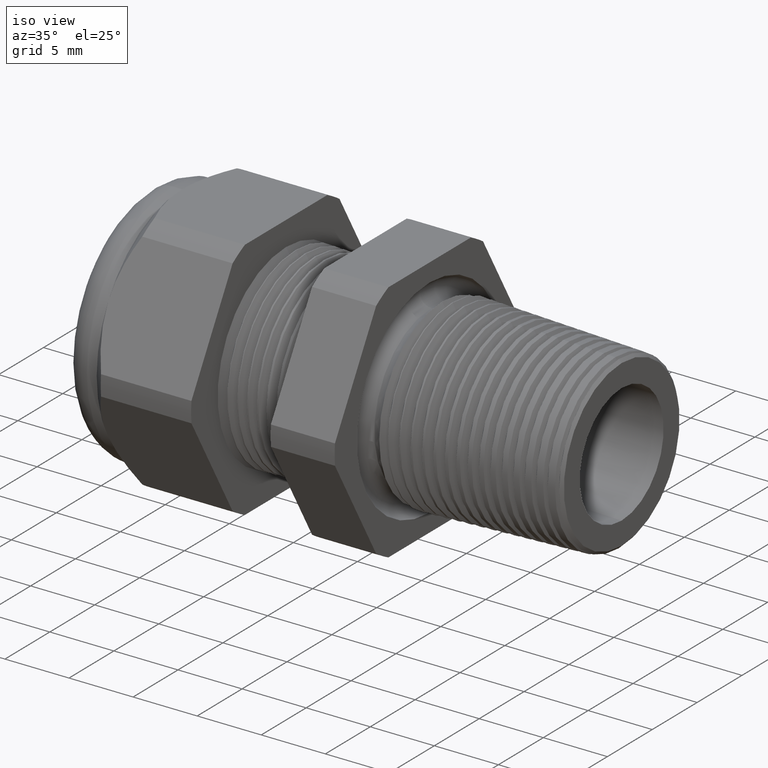
[diagram: clean part render]
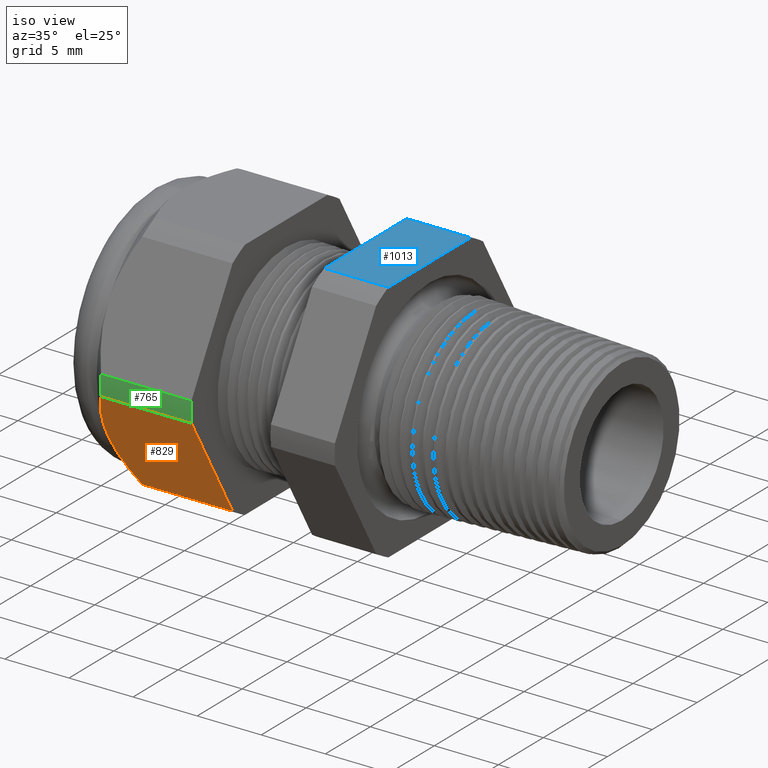
[diagram: same view with three faces highlighted in distinct colors, each labeled with its STEP entity id]
A machine part, iso view with three faces highlighted in distinct colors.
Their STEP definitions:

[orange] entity #829 — the highlighted planar face has unit normal (0, -0.866, -0.5).
#770 = VERTEX_POINT ( 'NONE', #3205 ) ;
#772 = EDGE_CURVE ( 'NONE', #773, #770, #3204, .T. ) ;
#773 = VERTEX_POINT ( 'NONE', #3200 ) ;
#829 = ADVANCED_FACE ( 'NONE', ( #3339 ), #3338, .T. ) ;
#830 = EDGE_LOOP ( 'NONE', ( #831, #832, #835, #838, #841 ) ) ;
#831 = ORIENTED_EDGE ( 'NONE', *, *, #772, .T. ) ;
#832 = ORIENTED_EDGE ( 'NONE', *, *, #833, .T. ) ;
#833 = EDGE_CURVE ( 'NONE', #770, #834, #3333, .T. ) ;
#834 = VERTEX_POINT ( 'NONE', #3332 ) ;
#835 = ORIENTED_EDGE ( 'NONE', *, *, #836, .T. ) ;
#836 = EDGE_CURVE ( 'NONE', #834, #837, #3323, .T. ) ;
#837 = VERTEX_POINT ( 'NONE', #3322 ) ;
#838 = ORIENTED_EDGE ( 'NONE', *, *, #839, .F. ) ;
#839 = EDGE_CURVE ( 'NONE', #840, #837, #3315, .T. ) ;
#840 = VERTEX_POINT ( 'NONE', #3369 ) ;
#841 = ORIENTED_EDGE ( 'NONE', *, *, #842, .F. ) ;
#842 = EDGE_CURVE ( 'NONE', #773, #840, #3368, .T. ) ;
#3200 = CARTESIAN_POINT ( 'NONE',  ( -0.7508661417322833900, -0.4150909474475088000, -0.03104138925901237000 ) ) ;
#3201 = DIRECTION ( 'NONE',  ( -1.000000000000000000, 0.0000000000000000000, 0.0000000000000000000 ) ) ;
#3202 = VECTOR ( 'NONE', #3201, 39.37007874015748100 ) ;
#3203 = CARTESIAN_POINT ( 'NONE',  ( 0.2800000000000000300, -0.4150909474475088000, -0.03104138925901237000 ) ) ;
#3204 = LINE ( 'NONE', #3203, #3202 ) ;
#3205 = CARTESIAN_POINT ( 'NONE',  ( -1.028513779527559000, -0.4150909474475088000, -0.03104138925901241800 ) ) ;
#3313 = DIRECTION ( 'NONE',  ( -1.000000000000000000, 0.0000000000000000000, 0.0000000000000000000 ) ) ;
#3314 = CARTESIAN_POINT ( 'NONE',  ( 0.2800000000000000300, -0.2344281053908202100, -0.3439586107409880500 ) ) ;
#3315 = LINE ( 'NONE', #3314, #3370 ) ;
#3316 = CARTESIAN_POINT ( 'NONE',  ( -1.028513779527559200, -0.2344281053908201800, -0.3439586107409879900 ) ) ;
#3317 = CARTESIAN_POINT ( 'NONE',  ( -1.041003202145915700, -0.2488160174420975000, -0.3190380160533434200 ) ) ;
#3318 = CARTESIAN_POINT ( 'NONE',  ( -1.051459219999149700, -0.2636869420682234100, -0.2932808190453660100 ) ) ;
#3319 = CARTESIAN_POINT ( 'NONE',  ( -1.065817769005222600, -0.2938118100972367800, -0.2411030170478076800 ) ) ;
#3320 = CARTESIAN_POINT ( 'NONE',  ( -1.069763779527558500, -0.3091297520026594100, -0.2145715634002271200 ) ) ;
#3321 = CARTESIAN_POINT ( 'NONE',  ( -1.069763779527559200, -0.3247595264191645600, -0.1875000000000001900 ) ) ;
#3322 = CARTESIAN_POINT ( 'NONE',  ( -1.028513779527559200, -0.2344281053908201800, -0.3439586107409879900 ) ) ;
#3323 = B_SPLINE_CURVE_WITH_KNOTS ( 'NONE', 3,
 ( #3321, #3320, #3319, #3318, #3317, #3316 ),
 .UNSPECIFIED., .F., .F.,
 ( 4, 2, 4 ),
 ( 0.004709976344604658400, 0.007063225540252129700, 0.009416474735899601000 ),
 .UNSPECIFIED. ) ;
#3324 = CARTESIAN_POINT ( 'NONE',  ( -1.069763779527559200, -0.3247595264191645600, -0.1875000000000001900 ) ) ;
#3325 = CARTESIAN_POINT ( 'NONE',  ( -1.069763779527559000, -0.3325797762507458100, -0.1739549299638197300 ) ) ;
#3326 = CARTESIAN_POINT ( 'NONE',  ( -1.068759730589041300, -0.3404835130999904200, -0.1602652561712735700 ) ) ;
#3327 = CARTESIAN_POINT ( 'NONE',  ( -1.064926254644834100, -0.3559303281390046600, -0.1335105877085819000 ) ) ;
#3328 = CARTESIAN_POINT ( 'NONE',  ( -1.062104445229484300, -0.3635409529853225200, -0.1203285987974131300 ) ) ;
#3329 = CARTESIAN_POINT ( 'NONE',  ( -1.051298346633054100, -0.3860811521420284800, -0.08128782864527750500 ) ) ;
#3330 = CARTESIAN_POINT ( 'NONE',  ( -1.040987746498826900, -0.4007208404219565500, -0.05593114473747138500 ) ) ;
#3331 = CARTESIAN_POINT ( 'NONE',  ( -1.028513779527559000, -0.4150909474475088000, -0.03104138925901241800 ) ) ;
#3332 = CARTESIAN_POINT ( 'NONE',  ( -1.069763779527559200, -0.3247595264191645600, -0.1875000000000001900 ) ) ;
#3333 = B_SPLINE_CURVE_WITH_KNOTS ( 'NONE', 3,
 ( #3331, #3330, #3329, #3328, #3327, #3326, #3325, #3324 ),
 .UNSPECIFIED., .F., .F.,
 ( 4, 2, 2, 4 ),
 ( 2.483253706009800300E-007, 0.002355112334987630400, 0.003532544339796144200, 0.004709976344604658400 ),
 .UNSPECIFIED. ) ;
#3334 = DIRECTION ( 'NONE',  ( 0.0000000000000000000, 0.5000000000000003300, -0.8660254037844383700 ) ) ;
#3335 = DIRECTION ( 'NONE',  ( 0.0000000000000000000, -0.8660254037844384900, -0.5000000000000004400 ) ) ;
#3336 = CARTESIAN_POINT ( 'NONE',  ( 0.2800000000000000300, -0.2344281053908202900, -0.3439586107409879900 ) ) ;
#3337 = AXIS2_PLACEMENT_3D ( 'NONE', #3336, #3335, #3334 ) ;
#3338 = PLANE ( 'NONE',  #3337 ) ;
#3339 = FACE_OUTER_BOUND ( 'NONE', #830, .T. ) ;
#3365 = DIRECTION ( 'NONE',  ( 0.0000000000000000000, 0.5000000000000003300, -0.8660254037844383700 ) ) ;
#3366 = VECTOR ( 'NONE', #3365, 39.37007874015748100 ) ;
#3367 = CARTESIAN_POINT ( 'NONE',  ( -0.7508661417322833900, -0.2497595264191644900, -0.3174038105676660300 ) ) ;
#3368 = LINE ( 'NONE', #3367, #3366 ) ;
#3369 = CARTESIAN_POINT ( 'NONE',  ( -0.7508661417322833900, -0.2344281053908202100, -0.3439586107409880500 ) ) ;
#3370 = VECTOR ( 'NONE', #3313, 39.37007874015748100 ) ;

[blue] entity #1013 — the highlighted planar face has unit normal (0, 0, 1).
#845 = VERTEX_POINT ( 'NONE', #3353 ) ;
#847 = EDGE_CURVE ( 'NONE', #845, #848, #3352, .T. ) ;
#848 = VERTEX_POINT ( 'NONE', #3348 ) ;
#1010 = VERTEX_POINT ( 'NONE', #3715 ) ;
#1013 = ADVANCED_FACE ( 'NONE', ( #3714 ), #3708, .T. ) ;
#1014 = EDGE_LOOP ( 'NONE', ( #1015, #1016, #1017, #1070 ) ) ;
#1015 = ORIENTED_EDGE ( 'NONE', *, *, #1088, .F. ) ;
#1016 = ORIENTED_EDGE ( 'NONE', *, *, #847, .F. ) ;
#1017 = ORIENTED_EDGE ( 'NONE', *, *, #1068, .T. ) ;
#1018 = VERTEX_POINT ( 'NONE', #3703 ) ;
#1068 = EDGE_CURVE ( 'NONE', #845, #1018, #3763, .T. ) ;
#1070 = ORIENTED_EDGE ( 'NONE', *, *, #1071, .F. ) ;
#1071 = EDGE_CURVE ( 'NONE', #1010, #1018, #3754, .T. ) ;
#1088 = EDGE_CURVE ( 'NONE', #848, #1010, #3794, .T. ) ;
#3348 = CARTESIAN_POINT ( 'NONE',  ( -0.3100000000000000000, -0.1806628420566886700, 0.3749999999999999400 ) ) ;
#3349 = DIRECTION ( 'NONE',  ( 0.0000000000000000000, -1.000000000000000000, 0.0000000000000000000 ) ) ;
#3350 = VECTOR ( 'NONE', #3349, 39.37007874015748100 ) ;
#3351 = CARTESIAN_POINT ( 'NONE',  ( -0.3100000000000000000, 0.7500000000000001100, 0.3749999999999999400 ) ) ;
#3352 = LINE ( 'NONE', #3351, #3350 ) ;
#3353 = CARTESIAN_POINT ( 'NONE',  ( -0.3100000000000000000, 0.1806628420566887000, 0.3749999999999999400 ) ) ;
#3703 = CARTESIAN_POINT ( 'NONE',  ( -0.5068503937007874400, 0.1806628420566887000, 0.3749999999999999400 ) ) ;
#3704 = DIRECTION ( 'NONE',  ( 1.000000000000000000, 0.0000000000000000000, 0.0000000000000000000 ) ) ;
#3705 = DIRECTION ( 'NONE',  ( 0.0000000000000000000, 0.0000000000000000000, 1.000000000000000000 ) ) ;
#3706 = CARTESIAN_POINT ( 'NONE',  ( 0.2800000000000000300, -0.1806628420566887000, 0.3749999999999999400 ) ) ;
#3707 = AXIS2_PLACEMENT_3D ( 'NONE', #3706, #3705, #3704 ) ;
#3708 = PLANE ( 'NONE',  #3707 ) ;
#3714 = FACE_OUTER_BOUND ( 'NONE', #1014, .T. ) ;
#3715 = CARTESIAN_POINT ( 'NONE',  ( -0.5068503937007874400, -0.1806628420566886700, 0.3749999999999999400 ) ) ;
#3751 = DIRECTION ( 'NONE',  ( 0.0000000000000000000, 1.000000000000000000, 0.0000000000000000000 ) ) ;
#3752 = VECTOR ( 'NONE', #3751, 39.37007874015748100 ) ;
#3753 = CARTESIAN_POINT ( 'NONE',  ( -0.5068503937007874400, 0.7500000000000001100, 0.3749999999999999400 ) ) ;
#3754 = LINE ( 'NONE', #3753, #3752 ) ;
#3756 = DIRECTION ( 'NONE',  ( -1.000000000000000000, 0.0000000000000000000, 0.0000000000000000000 ) ) ;
#3757 = VECTOR ( 'NONE', #3756, 39.37007874015748100 ) ;
#3758 = CARTESIAN_POINT ( 'NONE',  ( 0.2800000000000000300, 0.1806628420566887000, 0.3749999999999999400 ) ) ;
#3763 = LINE ( 'NONE', #3758, #3757 ) ;
#3787 = DIRECTION ( 'NONE',  ( -1.000000000000000000, 0.0000000000000000000, 0.0000000000000000000 ) ) ;
#3788 = VECTOR ( 'NONE', #3787, 39.37007874015748100 ) ;
#3789 = CARTESIAN_POINT ( 'NONE',  ( 0.2800000000000000300, -0.1806628420566886700, 0.3749999999999999400 ) ) ;
#3794 = LINE ( 'NONE', #3789, #3788 ) ;

[green] entity #765 — the highlighted cylindrical surface (partial cylindrical patch) has radius 10.5727 mm, axis along (-1, 0, 0).
#765 = ADVANCED_FACE ( 'NONE', ( #3216 ), #3214, .T. ) ;
#766 = EDGE_LOOP ( 'NONE', ( #767, #768, #771, #774 ) ) ;
#767 = ORIENTED_EDGE ( 'NONE', *, *, #789, .T. ) ;
#768 = ORIENTED_EDGE ( 'NONE', *, *, #769, .T. ) ;
#769 = EDGE_CURVE ( 'NONE', #786, #770, #3209, .T. ) ;
#770 = VERTEX_POINT ( 'NONE', #3205 ) ;
#771 = ORIENTED_EDGE ( 'NONE', *, *, #772, .F. ) ;
#772 = EDGE_CURVE ( 'NONE', #773, #770, #3204, .T. ) ;
#773 = VERTEX_POINT ( 'NONE', #3200 ) ;
#774 = ORIENTED_EDGE ( 'NONE', *, *, #775, .F. ) ;
#775 = EDGE_CURVE ( 'NONE', #790, #773, #3198, .T. ) ;
#786 = VERTEX_POINT ( 'NONE', #3231 ) ;
#789 = EDGE_CURVE ( 'NONE', #790, #786, #3230, .T. ) ;
#790 = VERTEX_POINT ( 'NONE', #3280 ) ;
#3194 = DIRECTION ( 'NONE',  ( 0.0000000000000000000, 0.0000000000000000000, -1.000000000000000000 ) ) ;
#3195 = DIRECTION ( 'NONE',  ( 1.000000000000000000, 0.0000000000000000000, 0.0000000000000000000 ) ) ;
#3196 = CARTESIAN_POINT ( 'NONE',  ( -0.7508661417322833900, 0.0000000000000000000, 0.0000000000000000000 ) ) ;
#3197 = AXIS2_PLACEMENT_3D ( 'NONE', #3196, #3195, #3194 ) ;
#3198 = CIRCLE ( 'NONE', #3197, 0.4162500000000000100 ) ;
#3200 = CARTESIAN_POINT ( 'NONE',  ( -0.7508661417322833900, -0.4150909474475088000, -0.03104138925901237000 ) ) ;
#3201 = DIRECTION ( 'NONE',  ( -1.000000000000000000, 0.0000000000000000000, 0.0000000000000000000 ) ) ;
#3202 = VECTOR ( 'NONE', #3201, 39.37007874015748100 ) ;
#3203 = CARTESIAN_POINT ( 'NONE',  ( 0.2800000000000000300, -0.4150909474475088000, -0.03104138925901237000 ) ) ;
#3204 = LINE ( 'NONE', #3203, #3202 ) ;
#3205 = CARTESIAN_POINT ( 'NONE',  ( -1.028513779527559000, -0.4150909474475088000, -0.03104138925901241800 ) ) ;
#3206 = DIRECTION ( 'NONE',  ( 0.0000000000000000000, 0.0000000000000000000, -1.000000000000000000 ) ) ;
#3207 = DIRECTION ( 'NONE',  ( 1.000000000000000000, 0.0000000000000000000, 0.0000000000000000000 ) ) ;
#3208 = AXIS2_PLACEMENT_3D ( 'NONE', #3215, #3207, #3206 ) ;
#3209 = CIRCLE ( 'NONE', #3208, 0.4162500000000000100 ) ;
#3210 = DIRECTION ( 'NONE',  ( 0.0000000000000000000, 0.0000000000000000000, 1.000000000000000000 ) ) ;
#3211 = DIRECTION ( 'NONE',  ( -1.000000000000000000, 0.0000000000000000000, 0.0000000000000000000 ) ) ;
#3212 = CARTESIAN_POINT ( 'NONE',  ( 0.2800000000000000300, 0.0000000000000000000, 0.0000000000000000000 ) ) ;
#3213 = AXIS2_PLACEMENT_3D ( 'NONE', #3212, #3211, #3210 ) ;
#3214 = CYLINDRICAL_SURFACE ( 'NONE', #3213, 0.4162500000000000100 ) ;
#3215 = CARTESIAN_POINT ( 'NONE',  ( -1.028513779527559200, 0.0000000000000000000, 0.0000000000000000000 ) ) ;
#3216 = FACE_OUTER_BOUND ( 'NONE', #766, .T. ) ;
#3228 = DIRECTION ( 'NONE',  ( -1.000000000000000000, 0.0000000000000000000, 0.0000000000000000000 ) ) ;
#3229 = CARTESIAN_POINT ( 'NONE',  ( 0.2800000000000000300, -0.4150909474475088000, 0.03104138925901241800 ) ) ;
#3230 = LINE ( 'NONE', #3229, #3281 ) ;
#3231 = CARTESIAN_POINT ( 'NONE',  ( -1.028513779527559200, -0.4150909474475088000, 0.03104138925901241800 ) ) ;
#3280 = CARTESIAN_POINT ( 'NONE',  ( -0.7508661417322833900, -0.4150909474475088000, 0.03104138925901241800 ) ) ;
#3281 = VECTOR ( 'NONE', #3228, 39.37007874015748100 ) ;